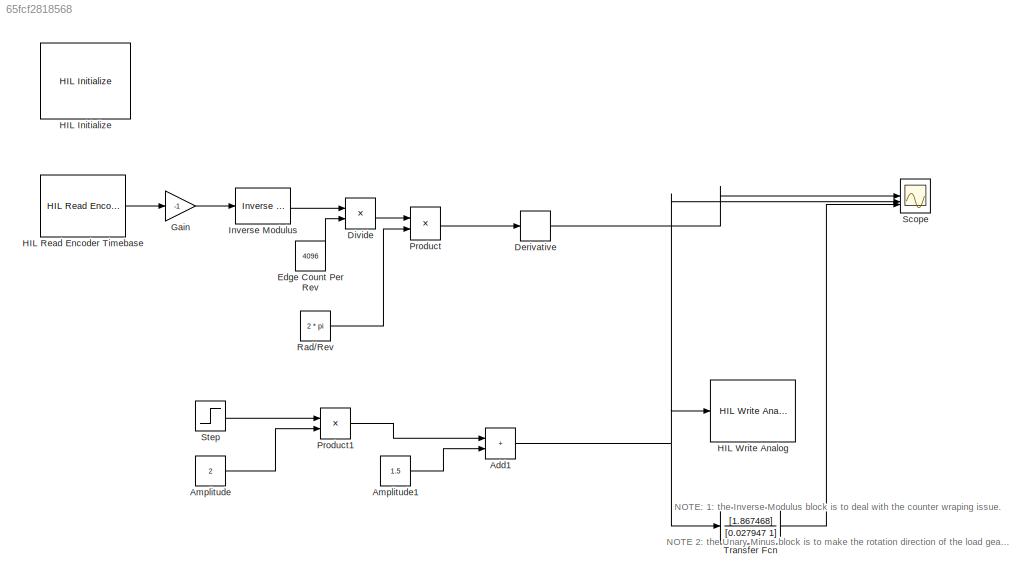
MODEL slx_65fcf2818568
KIND model
CONFIG AbsTol = auto
CONFIG EnableMultiTasking = on
CONFIG FixedStep = 0.01
CONFIG MaxStep = auto
CONFIG MinStep = auto
CONFIG RelTol = 1e-3
CONFIG SampleTimeConstraint = Unconstrained
CONFIG SolverName = FixedStepAuto
CONFIG StartTime = 0.0
CONFIG StopTime = 10
BLOCK [Sum] Add1
  IconShape = rectangular
BLOCK [Constant] Amplitude
  Value = 2
BLOCK [Constant] Amplitude1
  Value = 1.5
BLOCK [Derivative] Derivative
BLOCK [Product] Divide
  Inputs = */
BLOCK [Constant] Edge Count Per Rev 
  Value = 4096
BLOCK [Gain] Gain
  Gain = -1
BLOCK [Reference] HIL Initialize  REF=quarc_library/Data Acquisition/Generic/Configuration/HIL Initialize
  AttributesFormatString = %<object_name> (%<board_type>-%<board_number>)
  SourceBlock = quarc_library/Data Acquisition/Generic/Configuration/HIL Initialize
  SourceProductName = QUARC Targets
  SourceType = HIL Initialize
  UserDataPersistent = on
BLOCK [Reference] HIL Read Encoder Timebase  REF=quarc_library/Data Acquisition/Generic/Timebases/HIL Read Encoder
Timebase
  AttributesFormatString = (%<object_name>)
  SourceBlock = quarc_library/Data Acquisition/Generic/Timebases/HIL Read Encoder\nTimebase
  SourceProductName = QUARC Targets
  SourceType = HIL Read Encoder Timebase
  UserDataPersistent = on
BLOCK [Reference] HIL Write Analog  REF=quarc_library/Data Acquisition/Generic/Immediate I//O/HIL Write Analog
  AttributesFormatString = (%<object_name>)
  SourceBlock = quarc_library/Data Acquisition/Generic/Immediate I//O/HIL Write Analog
  SourceProductName = QUARC Targets
  SourceType = HIL Write Analog
  UserDataPersistent = on
BLOCK [Reference] Inverse Modulus  REF=quarc_library/Discontinuities/Inverse
Modulus
  SourceBlock = quarc_library/Discontinuities/Inverse\nModulus
  SourceProductName = QUARC Targets
  SourceType = Inverse Modulus
BLOCK [Product] Product
BLOCK [Product] Product1
BLOCK [Constant] Rad//Rev
  Value = 2 * pi
BLOCK [Scope] Scope
  Floating = off
  NumInputPorts = 3
  ScopeSpecificationString = Simulink.scopes.TimeScopeBlockCfg('CurrentConfiguration', extmgr.ConfigurationSet(extmgr.Configuration('Core','General UI',true),extmgr.Configuration('Core','Source UI',true),extmgr.Configuration('Sources','WiredSimulink',true),extmgr.Configuration('Visuals','Time Domain',true,'SerializedDisplays',{struct('MinYLimReal','5.48096','MaxYLimReal','6.727','YLabelReal','','MinYLimMag','5.48096','MaxYLim...<+1468ch>
BLOCK [Step] Step
  SampleTime = 0
BLOCK [TransferFcn] Transfer Fcn
  Denominator = [0.027947 1]
  Numerator = [1.867468]
ANNOTATION (root): NOTE: 1: the Inverse Modulus block is to deal with the counter wraping issue. NOTE 2: the Unary Minus block is to make the rotation direction of the load gear, derived from the Encoder reading, to have the same sign as the driving voltage, and have the same sign as the tachometer reading.
NET Add1:1 -> HIL Write Analog:1, Scope:2, Transfer Fcn:1
LINE Amplitude1:1 -> Add1:2
LINE Amplitude:1 -> Product1:2
LINE Derivative:1 -> Scope:1
LINE Divide:1 -> Product:1
LINE Edge Count Per Rev :1 -> Divide:2
LINE Gain:1 -> Inverse Modulus:1
LINE HIL Read Encoder Timebase:1 -> Gain:1
LINE Inverse Modulus:1 -> Divide:1
LINE Product1:1 -> Add1:1
LINE Product:1 -> Derivative:1
LINE Rad//Rev:1 -> Product:2
LINE Step:1 -> Product1:1
LINE Transfer Fcn:1 -> Scope:3
note: NET lines group one-source signal fan-out (src -> all destinations, sorted); 1:1 wires keep LINE
